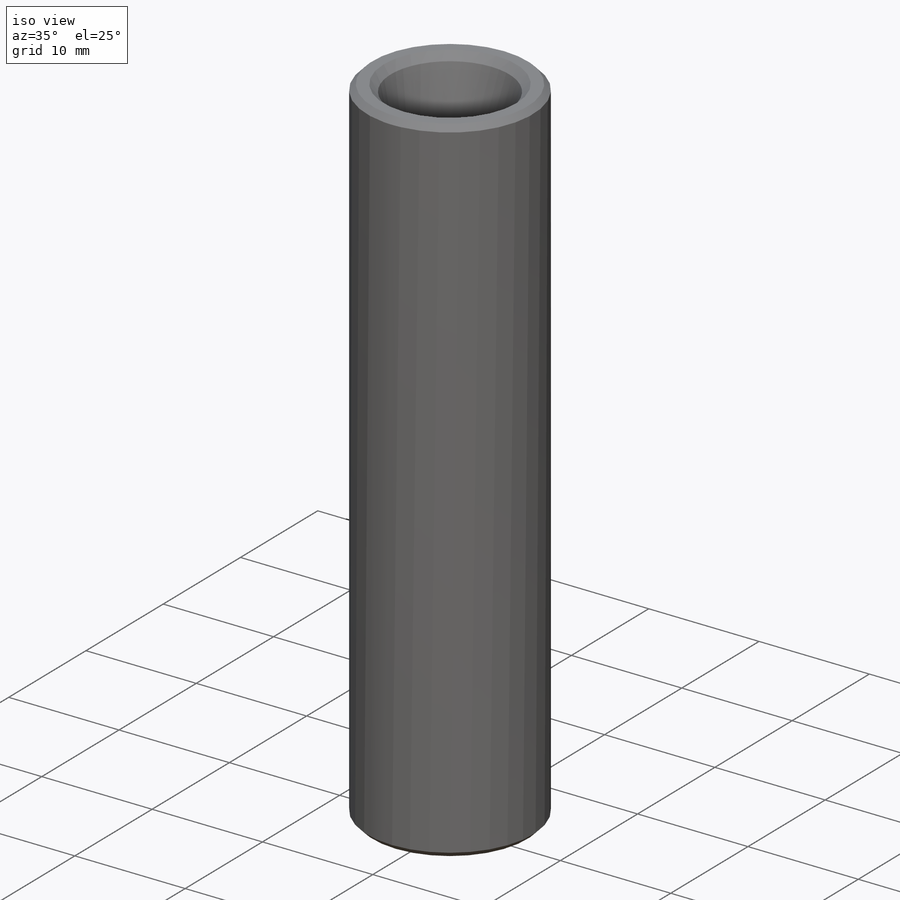
[diagram: iso view]
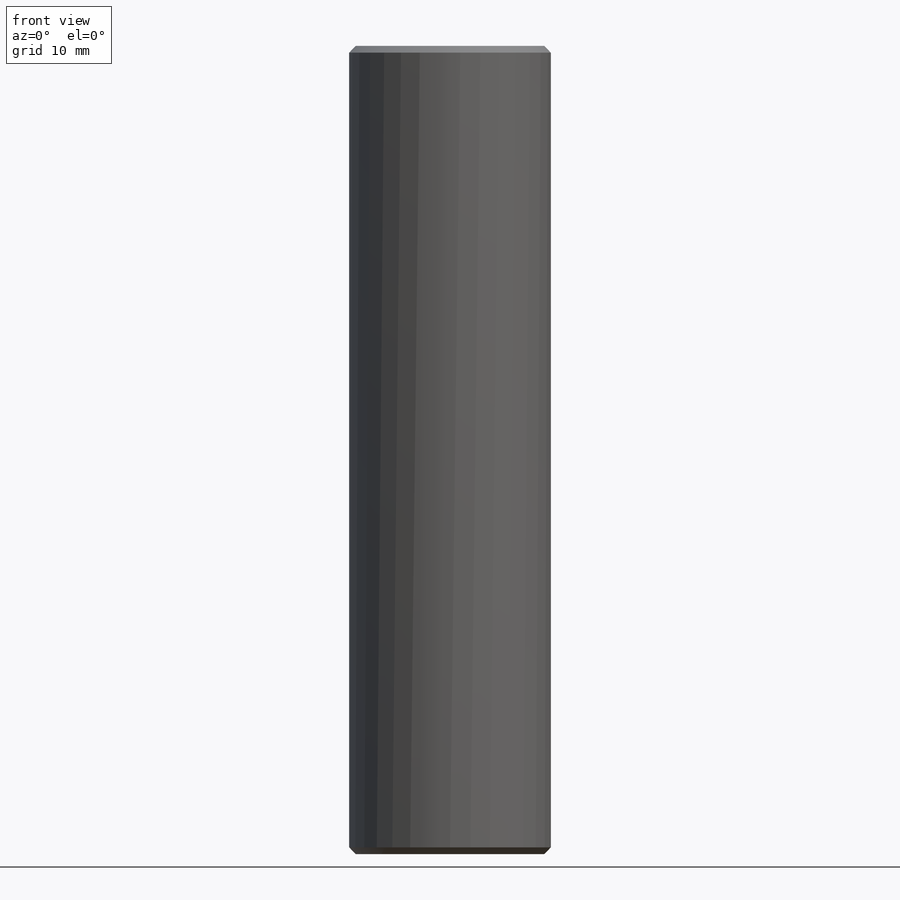
[diagram: front view]
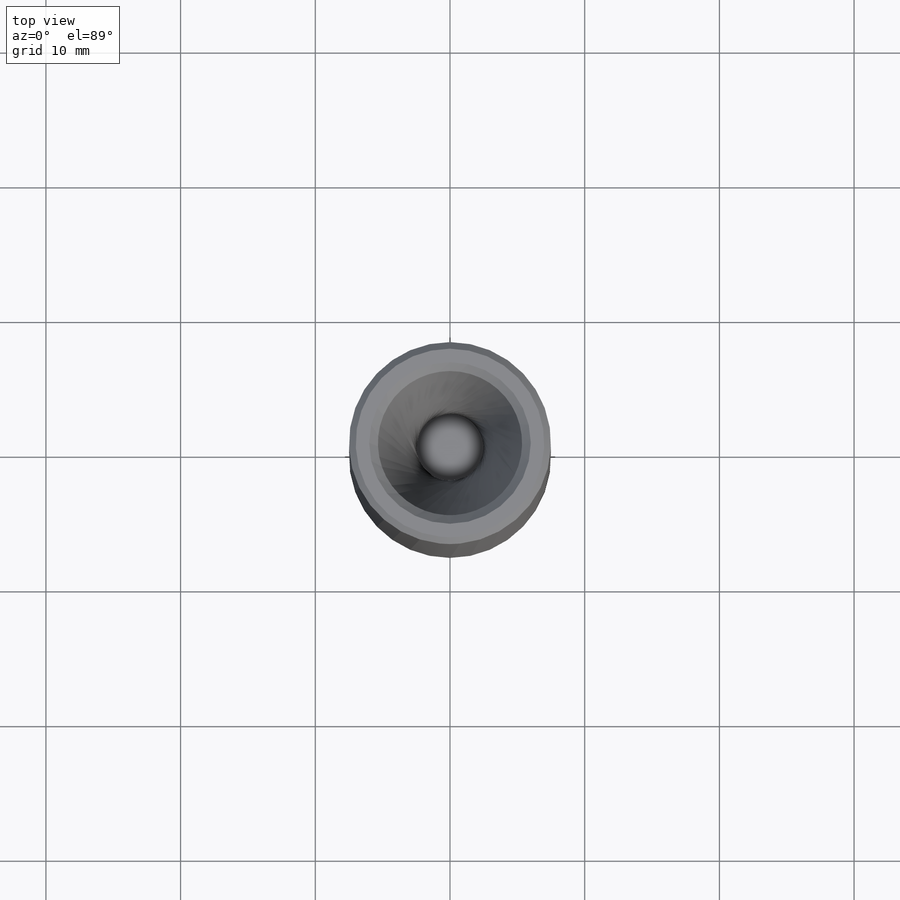
[diagram: top view]
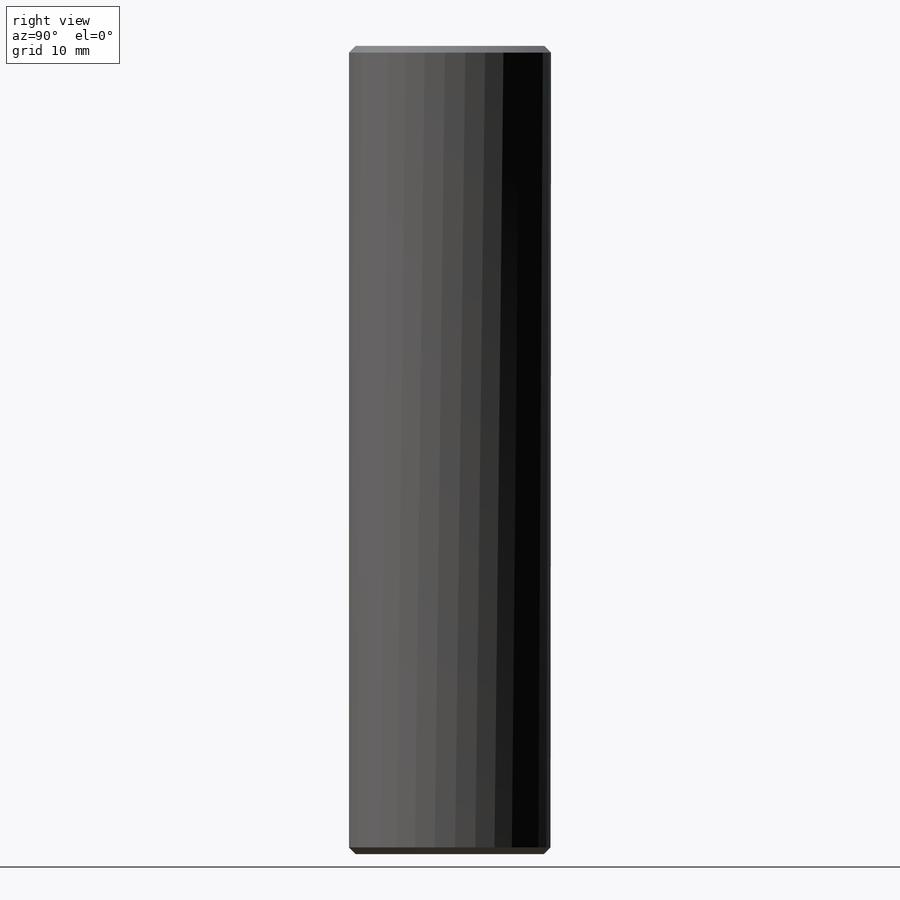
[diagram: right view]
SOLIDWORKS PART (.sldprt)
format: sldprt  version: not decoded by parser v0  size: 279,552 bytes
history: native  units: mm
features: plane x5, sketch x3, chamfer x2, material x1, extrude x1, mirror x1 (+8 scaffold rows collapsed)
feature tree (21):
  scaffold x8  (default folders/planes/origin — collapsed)
  material  "Material <sin especificar>"
  plane  "Alzado"
  plane  "Planta"
  plane  "Vista lateral"
  sketch  "Croquis1"  dims[D1=15.0mm]
  extrude  "Saliente-Extruir1"  Depth=60mm
  plane  "Plano1"  Offset=20mm
  sketch  "Croquis2"  dims[D1=5.0mm]
  sketch  "Croquis3"  dims[D1=11.0mm]
  chamfer  "Chaflán1"  Distance=0.5mm Angle=45deg
  plane  "Plano2"  Offset=30mm
  mirror  "Simetría7"
  chamfer  "Chaflán2"  Distance=0.5mm Angle=45deg
decode coverage: 6 of 7 modeling features carry decoded parameters
note: suppression state not decoded; provenance and decode notes live in map.json
